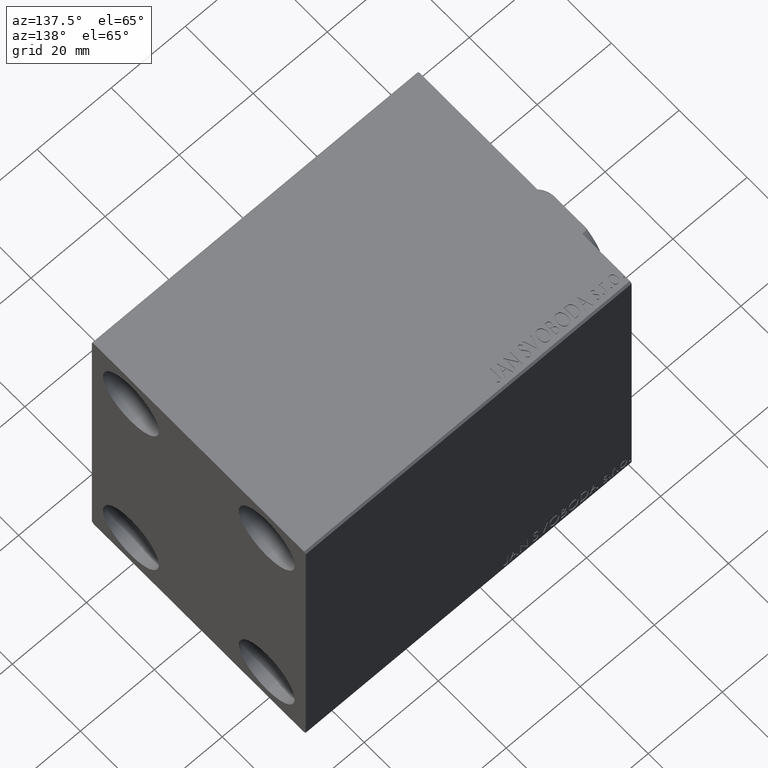
[diagram: clean part render]
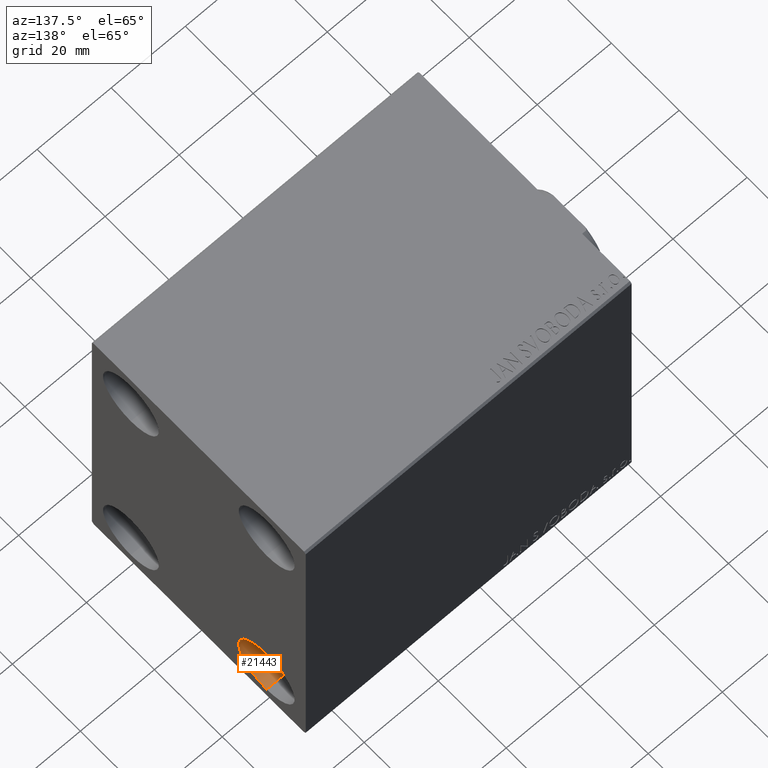
[diagram: same view with one face highlighted and labeled with its STEP entity id]
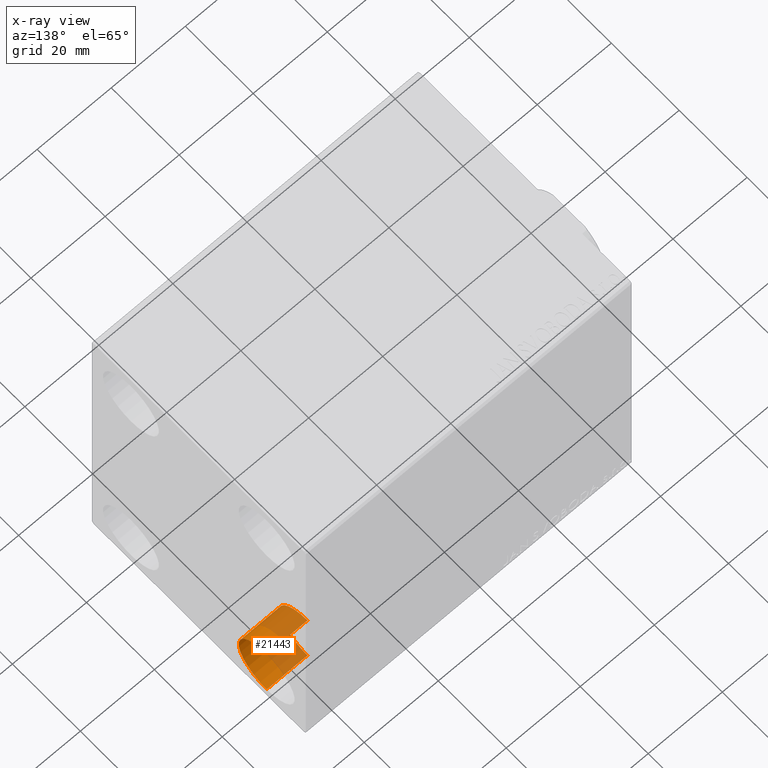
[diagram: x-ray of the same camera — body ghosted, the highlighted face saturated]
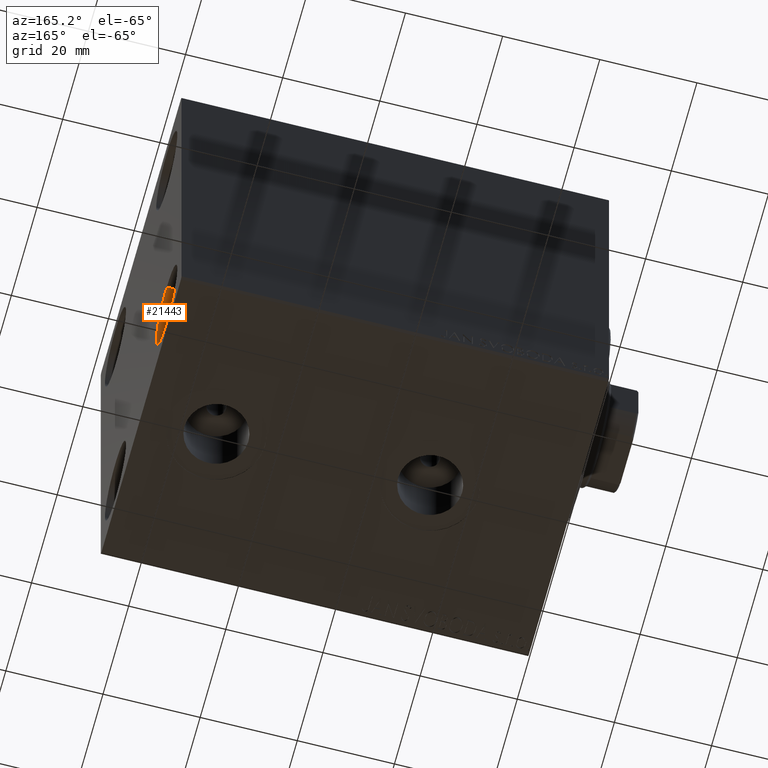
[diagram: same view with one face highlighted and labeled with its STEP entity id]
A machine part, auxiliary view. The second image highlights one B-rep face of the part: STEP entity #21443.
The next image is the same camera in x-ray: the body ghosted, the highlighted face saturated — about 50% of this face is hidden behind the body in this view.
A second angle (auxiliary view) of the same face is appended — the face is thin or edge-on in the first view.
In plain terms, the highlighted cylindrical surface (partial cylindrical patch) has radius 8.25 mm, axis along (1, 0, 0).
Its self-contained STEP definition (entity closure, byte-faithful):
#989 = CARTESIAN_POINT ( 'NONE',  ( 77.00000000000000000, 19.99999999999999645, -23.24999999999999289 ) ) ;
#4770 = VERTEX_POINT ( 'NONE', #989 ) ;
#4904 = DIRECTION ( 'NONE',  ( 0.000000000000000000, 0.000000000000000000, -1.000000000000000000 ) ) ;
#5129 = CARTESIAN_POINT ( 'NONE',  ( 77.00000000000000000, 19.99999999999999645, -39.74999999999999289 ) ) ;
#5185 = EDGE_LOOP ( 'NONE', ( #37816, #14596, #8832, #23879 ) ) ;
#7206 = CIRCLE ( 'NONE', #10765, 8.250000000000000000 ) ;
#8265 = DIRECTION ( 'NONE',  ( -1.000000000000000000, -0.000000000000000000, -0.000000000000000000 ) ) ;
#8832 = ORIENTED_EDGE ( 'NONE', *, *, #32345, .F. ) ;
#9343 = VERTEX_POINT ( 'NONE', #5129 ) ;
#9765 = LINE ( 'NONE', #10189, #18534 ) ;
#9890 = AXIS2_PLACEMENT_3D ( 'NONE', #39198, #8265, #15403 ) ;
#10189 = CARTESIAN_POINT ( 'NONE',  ( 77.00000000000000000, 19.99999999999999645, -23.24999999999999289 ) ) ;
#10765 = AXIS2_PLACEMENT_3D ( 'NONE', #26868, #20797, #27693 ) ;
#13696 = LINE ( 'NONE', #26820, #33897 ) ;
#14596 = ORIENTED_EDGE ( 'NONE', *, *, #37838, .T. ) ;
#15403 = DIRECTION ( 'NONE',  ( 0.000000000000000000, 0.000000000000000000, 1.000000000000000000 ) ) ;
#17711 = CIRCLE ( 'NONE', #9890, 8.250000000000000000 ) ;
#18534 = VECTOR ( 'NONE', #26457, 1000.000000000000000 ) ;
#20797 = DIRECTION ( 'NONE',  ( -1.000000000000000000, -0.000000000000000000, -0.000000000000000000 ) ) ;
#21383 = FACE_OUTER_BOUND ( 'NONE', #5185, .T. ) ;
#21443 = ADVANCED_FACE ( 'NONE', ( #21383 ), #28724, .F. ) ;
#23879 = ORIENTED_EDGE ( 'NONE', *, *, #26289, .F. ) ;
#26289 = EDGE_CURVE ( 'NONE', #9343, #32696, #13696, .T. ) ;
#26457 = DIRECTION ( 'NONE',  ( 1.000000000000000000, -0.000000000000000000, -0.000000000000000000 ) ) ;
#26820 = CARTESIAN_POINT ( 'NONE',  ( 77.00000000000000000, 19.99999999999999645, -39.74999999999999289 ) ) ;
#26868 = CARTESIAN_POINT ( 'NONE',  ( 77.00000000000000000, 19.99999999999999645, -31.49999999999999289 ) ) ;
#27693 = DIRECTION ( 'NONE',  ( 0.000000000000000000, 0.000000000000000000, 1.000000000000000000 ) ) ;
#28724 = CYLINDRICAL_SURFACE ( 'NONE', #42418, 8.250000000000000000 ) ;
#28956 = CARTESIAN_POINT ( 'NONE',  ( 77.00000000000000000, 19.99999999999999645, -31.49999999999999289 ) ) ;
#29591 = CARTESIAN_POINT ( 'NONE',  ( 88.00000000000000000, 19.99999999999999645, -39.74999999999999289 ) ) ;
#31214 = CARTESIAN_POINT ( 'NONE',  ( 88.00000000000000000, 19.99999999999999645, -23.24999999999999289 ) ) ;
#32345 = EDGE_CURVE ( 'NONE', #32696, #34903, #17711, .T. ) ;
#32696 = VERTEX_POINT ( 'NONE', #29591 ) ;
#33897 = VECTOR ( 'NONE', #37051, 1000.000000000000000 ) ;
#34903 = VERTEX_POINT ( 'NONE', #31214 ) ;
#37051 = DIRECTION ( 'NONE',  ( 1.000000000000000000, -0.000000000000000000, -0.000000000000000000 ) ) ;
#37816 = ORIENTED_EDGE ( 'NONE', *, *, #39923, .T. ) ;
#37838 = EDGE_CURVE ( 'NONE', #4770, #34903, #9765, .T. ) ;
#39198 = CARTESIAN_POINT ( 'NONE',  ( 88.00000000000000000, 19.99999999999999645, -31.49999999999999289 ) ) ;
#39923 = EDGE_CURVE ( 'NONE', #9343, #4770, #7206, .T. ) ;
#41626 = DIRECTION ( 'NONE',  ( 1.000000000000000000, -0.000000000000000000, -0.000000000000000000 ) ) ;
#42418 = AXIS2_PLACEMENT_3D ( 'NONE', #28956, #41626, #4904 ) ;